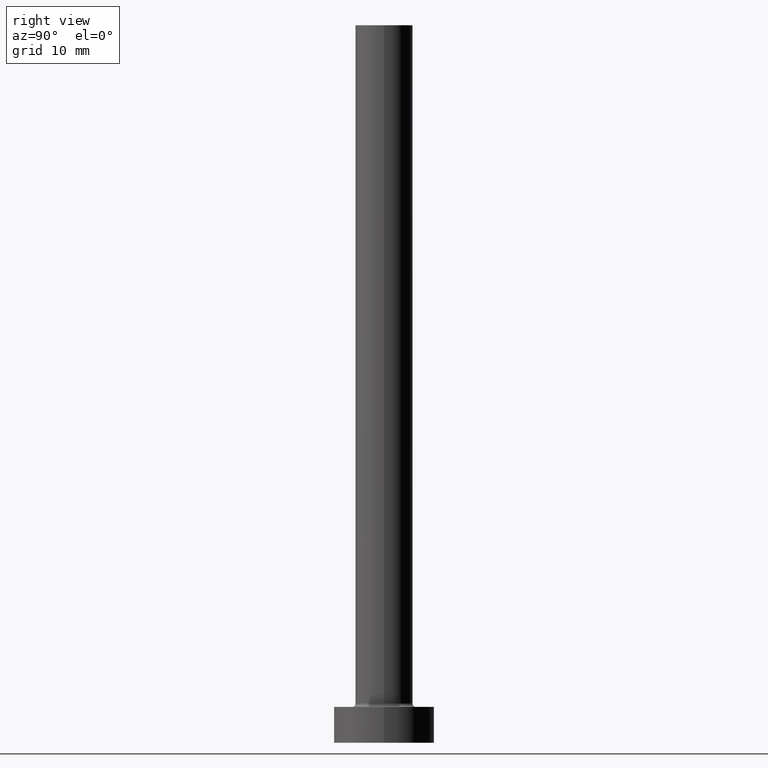
[diagram: clean part render]
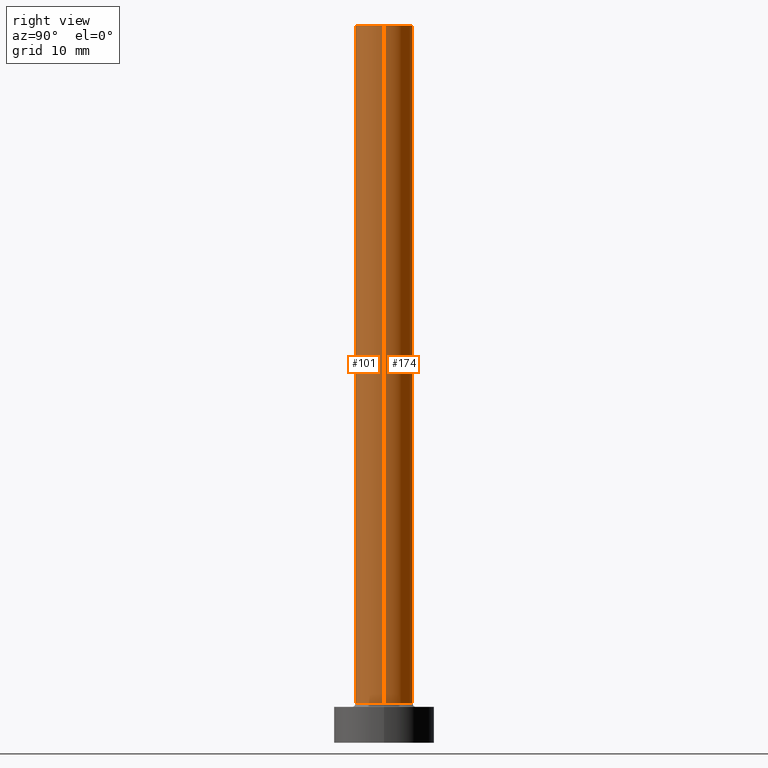
[diagram: same view with one multi-face feature highlighted, each face labeled with its STEP entity id]
A machine part, right view. The highlighted faces form ONE feature: a constant-radius fillet chain: 2 tangent blend faces with common blend radius 4 mm. The faces share edges in the B-rep.
Their STEP definitions:
[1] entity #174 (Cylinder):
#10 = CARTESIAN_POINT ( 'NONE',  ( 0.000000000000000000, 0.000000000000000000, 100.0000000000000000 ) ) ;
#15 = ORIENTED_EDGE ( 'NONE', *, *, #272, .T. ) ;
#25 = VECTOR ( 'NONE', #257, 1000.000000000000000 ) ;
#28 = CIRCLE ( 'NONE', #68, 4.000000000000000000 ) ;
#42 = EDGE_LOOP ( 'NONE', ( #347, #218, #15, #359 ) ) ;
#49 = EDGE_CURVE ( 'NONE', #323, #456, #178, .T. ) ;
#68 = AXIS2_PLACEMENT_3D ( 'NONE', #326, #217, #154 ) ;
#75 = DIRECTION ( 'NONE',  ( 0.000000000000000000, 0.000000000000000000, 1.000000000000000000 ) ) ;
#98 = CARTESIAN_POINT ( 'NONE',  ( 4.000000000000000000, 4.898587196589412829E-16, 100.0000000000000000 ) ) ;
#115 = CARTESIAN_POINT ( 'NONE',  ( -4.000000000000000000, 0.000000000000000000, 5.500000000000005329 ) ) ;
#118 = CARTESIAN_POINT ( 'NONE',  ( -4.000000000000000000, 0.000000000000000000, 100.0000000000000000 ) ) ;
#146 = VERTEX_POINT ( 'NONE', #115 ) ;
#154 = DIRECTION ( 'NONE',  ( 1.000000000000000000, 0.000000000000000000, 0.000000000000000000 ) ) ;
#158 = CARTESIAN_POINT ( 'NONE',  ( 0.000000000000000000, 0.000000000000000000, 100.0000000000000000 ) ) ;
#174 = ADVANCED_FACE ( 'NONE', ( #298 ), #189, .T. ) ;
#178 = LINE ( 'NONE', #98, #335 ) ;
#184 = LINE ( 'NONE', #118, #25 ) ;
#186 = CARTESIAN_POINT ( 'NONE',  ( -4.000000000000000000, 0.000000000000000000, 100.0000000000000000 ) ) ;
#189 = CYLINDRICAL_SURFACE ( 'NONE', #345, 4.000000000000000000 ) ;
#198 = CARTESIAN_POINT ( 'NONE',  ( 4.000000000000000000, 4.898587196589412829E-16, 100.0000000000000000 ) ) ;
#217 = DIRECTION ( 'NONE',  ( 0.000000000000000000, 0.000000000000000000, 1.000000000000000000 ) ) ;
#218 = ORIENTED_EDGE ( 'NONE', *, *, #49, .T. ) ;
#224 = EDGE_CURVE ( 'NONE', #290, #146, #184, .T. ) ;
#225 = AXIS2_PLACEMENT_3D ( 'NONE', #10, #75, #333 ) ;
#257 = DIRECTION ( 'NONE',  ( -0.000000000000000000, -0.000000000000000000, -1.000000000000000000 ) ) ;
#272 = EDGE_CURVE ( 'NONE', #456, #146, #28, .T. ) ;
#278 = EDGE_CURVE ( 'NONE', #323, #290, #378, .T. ) ;
#290 = VERTEX_POINT ( 'NONE', #186 ) ;
#298 = FACE_OUTER_BOUND ( 'NONE', #42, .T. ) ;
#301 = CARTESIAN_POINT ( 'NONE',  ( 4.000000000000000000, 4.898587196589412829E-16, 5.500000000000005329 ) ) ;
#318 = DIRECTION ( 'NONE',  ( -0.000000000000000000, -0.000000000000000000, -1.000000000000000000 ) ) ;
#323 = VERTEX_POINT ( 'NONE', #198 ) ;
#326 = CARTESIAN_POINT ( 'NONE',  ( 0.000000000000000000, 0.000000000000000000, 5.500000000000005329 ) ) ;
#333 = DIRECTION ( 'NONE',  ( 1.000000000000000000, 0.000000000000000000, 0.000000000000000000 ) ) ;
#335 = VECTOR ( 'NONE', #318, 1000.000000000000000 ) ;
#345 = AXIS2_PLACEMENT_3D ( 'NONE', #158, #437, #433 ) ;
#347 = ORIENTED_EDGE ( 'NONE', *, *, #278, .F. ) ;
#359 = ORIENTED_EDGE ( 'NONE', *, *, #224, .F. ) ;
#378 = CIRCLE ( 'NONE', #225, 4.000000000000000000 ) ;
#433 = DIRECTION ( 'NONE',  ( -1.000000000000000000, 0.000000000000000000, 0.000000000000000000 ) ) ;
#437 = DIRECTION ( 'NONE',  ( -0.000000000000000000, -0.000000000000000000, -1.000000000000000000 ) ) ;
#456 = VERTEX_POINT ( 'NONE', #301 ) ;
[2] entity #101 (Cylinder):
#1 = CYLINDRICAL_SURFACE ( 'NONE', #307, 4.000000000000000000 ) ;
#14 = CARTESIAN_POINT ( 'NONE',  ( 0.000000000000000000, 0.000000000000000000, 5.500000000000005329 ) ) ;
#25 = VECTOR ( 'NONE', #257, 1000.000000000000000 ) ;
#33 = DIRECTION ( 'NONE',  ( -0.000000000000000000, -0.000000000000000000, -1.000000000000000000 ) ) ;
#49 = EDGE_CURVE ( 'NONE', #323, #456, #178, .T. ) ;
#59 = ORIENTED_EDGE ( 'NONE', *, *, #291, .T. ) ;
#70 = DIRECTION ( 'NONE',  ( 0.000000000000000000, 0.000000000000000000, 1.000000000000000000 ) ) ;
#98 = CARTESIAN_POINT ( 'NONE',  ( 4.000000000000000000, 4.898587196589412829E-16, 100.0000000000000000 ) ) ;
#101 = ADVANCED_FACE ( 'NONE', ( #276 ), #1, .T. ) ;
#108 = CARTESIAN_POINT ( 'NONE',  ( 0.000000000000000000, 0.000000000000000000, 100.0000000000000000 ) ) ;
#115 = CARTESIAN_POINT ( 'NONE',  ( -4.000000000000000000, 0.000000000000000000, 5.500000000000005329 ) ) ;
#117 = EDGE_CURVE ( 'NONE', #290, #323, #287, .T. ) ;
#118 = CARTESIAN_POINT ( 'NONE',  ( -4.000000000000000000, 0.000000000000000000, 100.0000000000000000 ) ) ;
#146 = VERTEX_POINT ( 'NONE', #115 ) ;
#166 = CIRCLE ( 'NONE', #414, 4.000000000000000000 ) ;
#168 = CARTESIAN_POINT ( 'NONE',  ( 0.000000000000000000, 0.000000000000000000, 100.0000000000000000 ) ) ;
#173 = ORIENTED_EDGE ( 'NONE', *, *, #49, .F. ) ;
#178 = LINE ( 'NONE', #98, #335 ) ;
#184 = LINE ( 'NONE', #118, #25 ) ;
#186 = CARTESIAN_POINT ( 'NONE',  ( -4.000000000000000000, 0.000000000000000000, 100.0000000000000000 ) ) ;
#198 = CARTESIAN_POINT ( 'NONE',  ( 4.000000000000000000, 4.898587196589412829E-16, 100.0000000000000000 ) ) ;
#224 = EDGE_CURVE ( 'NONE', #290, #146, #184, .T. ) ;
#235 = ORIENTED_EDGE ( 'NONE', *, *, #117, .F. ) ;
#257 = DIRECTION ( 'NONE',  ( -0.000000000000000000, -0.000000000000000000, -1.000000000000000000 ) ) ;
#276 = FACE_OUTER_BOUND ( 'NONE', #338, .T. ) ;
#285 = DIRECTION ( 'NONE',  ( 1.000000000000000000, 0.000000000000000000, 0.000000000000000000 ) ) ;
#287 = CIRCLE ( 'NONE', #425, 4.000000000000000000 ) ;
#290 = VERTEX_POINT ( 'NONE', #186 ) ;
#291 = EDGE_CURVE ( 'NONE', #146, #456, #166, .T. ) ;
#301 = CARTESIAN_POINT ( 'NONE',  ( 4.000000000000000000, 4.898587196589412829E-16, 5.500000000000005329 ) ) ;
#307 = AXIS2_PLACEMENT_3D ( 'NONE', #108, #33, #319 ) ;
#318 = DIRECTION ( 'NONE',  ( -0.000000000000000000, -0.000000000000000000, -1.000000000000000000 ) ) ;
#319 = DIRECTION ( 'NONE',  ( -1.000000000000000000, 0.000000000000000000, 0.000000000000000000 ) ) ;
#323 = VERTEX_POINT ( 'NONE', #198 ) ;
#330 = DIRECTION ( 'NONE',  ( 1.000000000000000000, 0.000000000000000000, 0.000000000000000000 ) ) ;
#335 = VECTOR ( 'NONE', #318, 1000.000000000000000 ) ;
#338 = EDGE_LOOP ( 'NONE', ( #173, #235, #423, #59 ) ) ;
#414 = AXIS2_PLACEMENT_3D ( 'NONE', #14, #70, #330 ) ;
#423 = ORIENTED_EDGE ( 'NONE', *, *, #224, .T. ) ;
#425 = AXIS2_PLACEMENT_3D ( 'NONE', #168, #459, #285 ) ;
#456 = VERTEX_POINT ( 'NONE', #301 ) ;
#459 = DIRECTION ( 'NONE',  ( 0.000000000000000000, 0.000000000000000000, 1.000000000000000000 ) ) ;